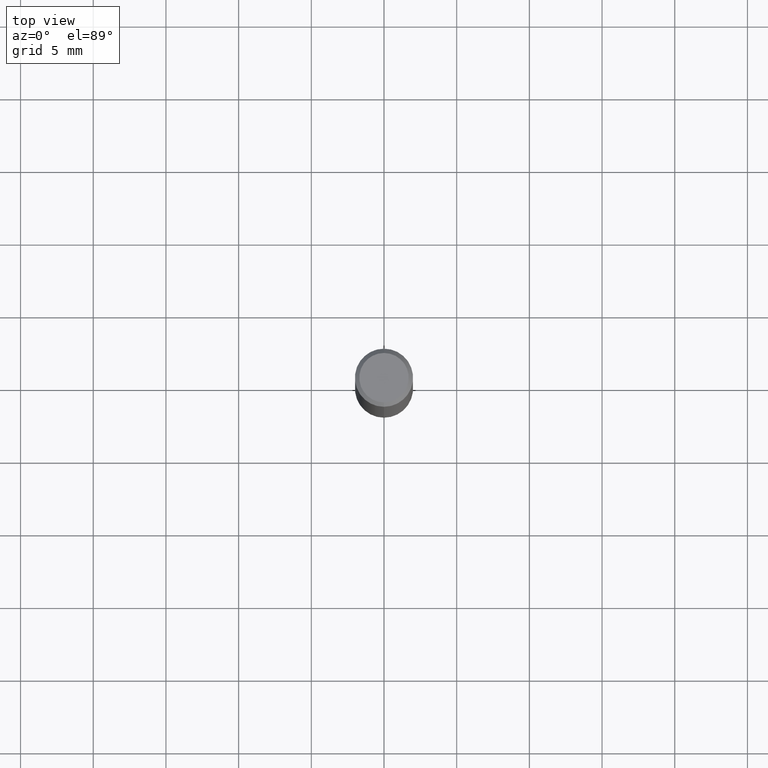
[diagram: clean part render]
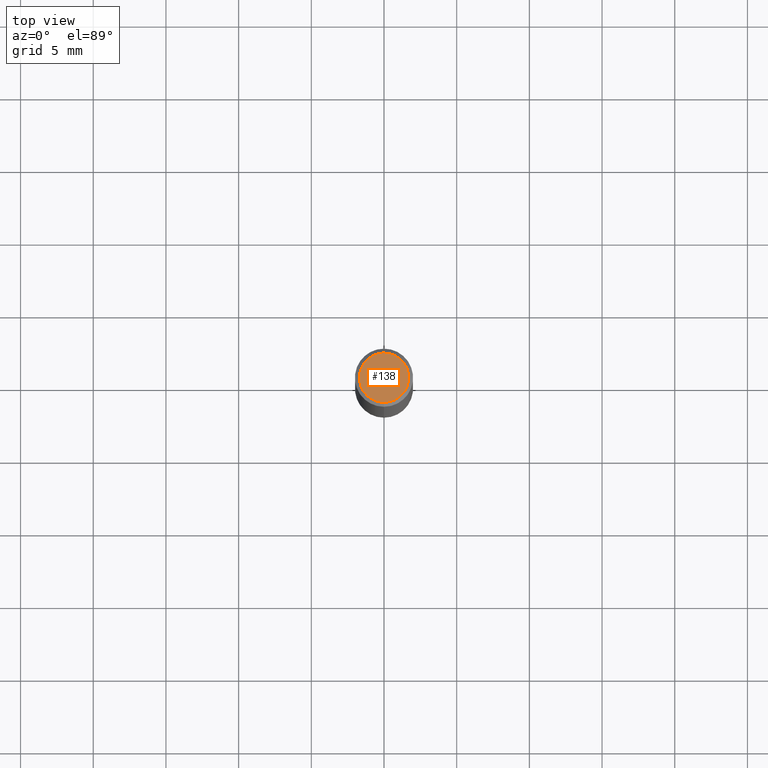
[diagram: same view with one face highlighted and labeled with its STEP entity id]
A machine part, top view. The second image highlights one B-rep face of the part: STEP entity #138.
In plain terms, the highlighted planar face has unit normal (-0, 0, 1).
Its self-contained STEP definition (entity closure, byte-faithful):
#104=VERTEX_POINT('',#233);
#110=VERTEX_POINT('',#239);
#132=EDGE_CURVE('',#110,#104,#263,.T.);
#138=ADVANCED_FACE('',(#269),#270,.T.);
#180=EDGE_CURVE('',#104,#110,#319,.T.);
#233=CARTESIAN_POINT('',(0.0,1.7,0.0));
#239=CARTESIAN_POINT('',(2.08183080149804E-016,-1.7,0.0));
#263=CIRCLE('',#408,1.7);
#269=FACE_OUTER_BOUND('',#415,.T.);
#270=PLANE('',#416);
#319=CIRCLE('',#478,1.7);
#408=AXIS2_PLACEMENT_3D('',#554,#555,#556);
#415=EDGE_LOOP('',(#561,#562));
#416=AXIS2_PLACEMENT_3D('',#563,#564,#565);
#478=AXIS2_PLACEMENT_3D('',#634,#635,#636);
#554=CARTESIAN_POINT('',(0.0,0.0,0.0));
#555=DIRECTION('',(0.0,0.0,-1.0));
#556=DIRECTION('',(0.0,1.0,0.0));
#561=ORIENTED_EDGE('',*,*,#180,.F.);
#562=ORIENTED_EDGE('',*,*,#132,.F.);
#563=CARTESIAN_POINT('',(0.0,0.85,0.0));
#564=DIRECTION('',(-0.0,0.0,1.0));
#565=DIRECTION('',(0.0,-1.0,0.0));
#634=CARTESIAN_POINT('',(0.0,0.0,0.0));
#635=DIRECTION('',(0.0,0.0,-1.0));
#636=DIRECTION('',(0.0,1.0,0.0));